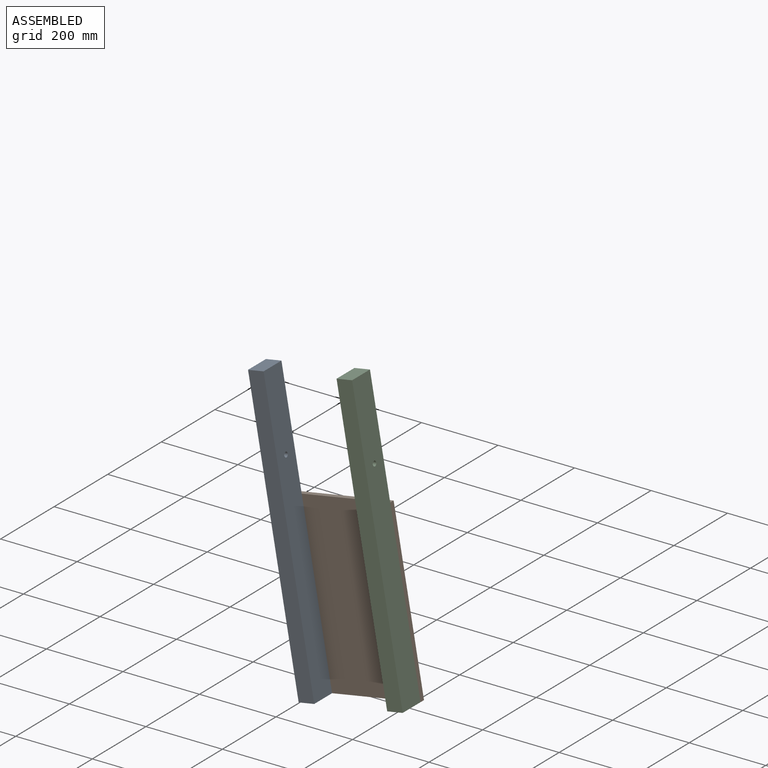
[diagram: assembled view]
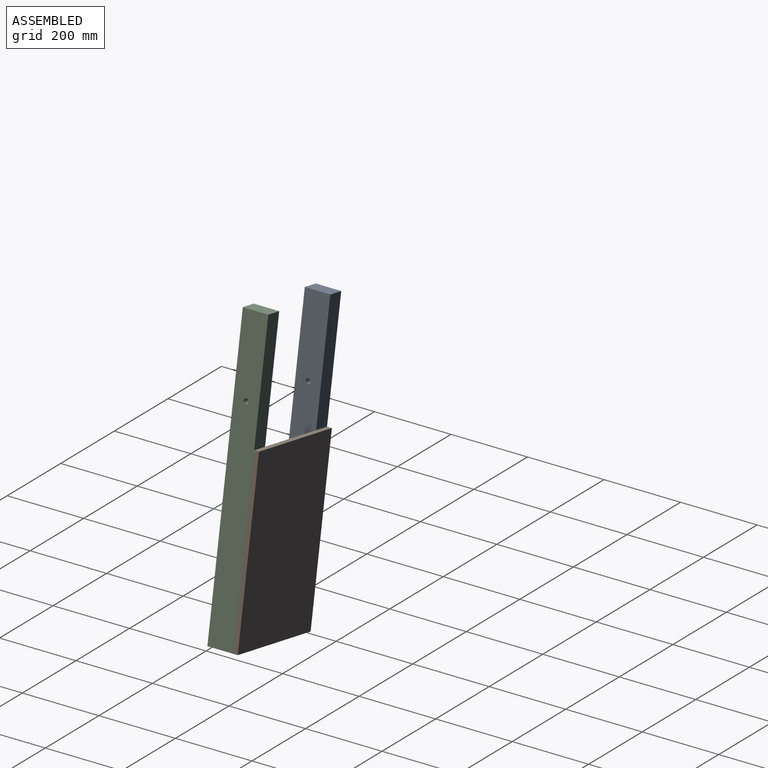
[diagram: assembled view, second angle]
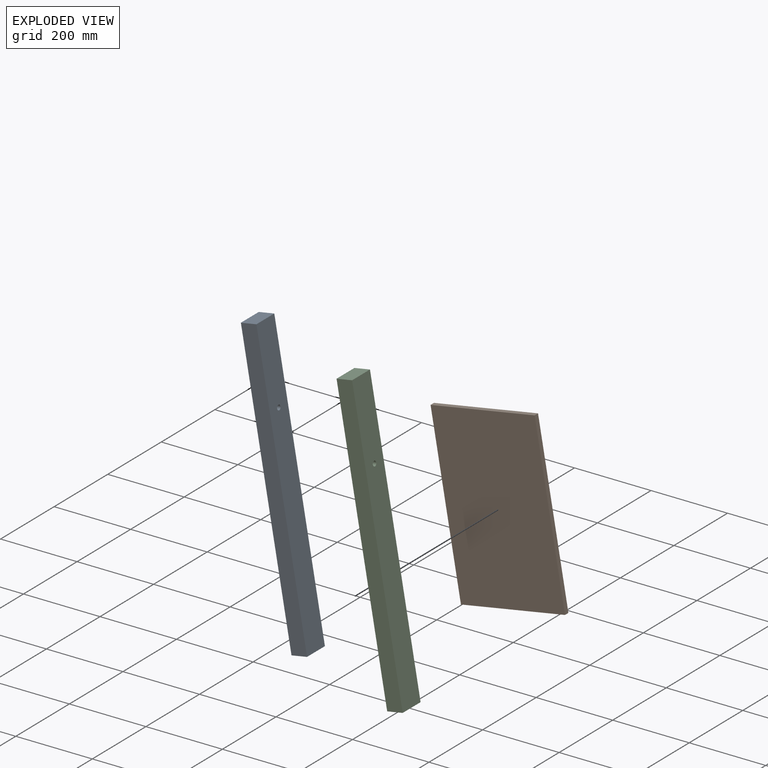
[diagram: exploded view]
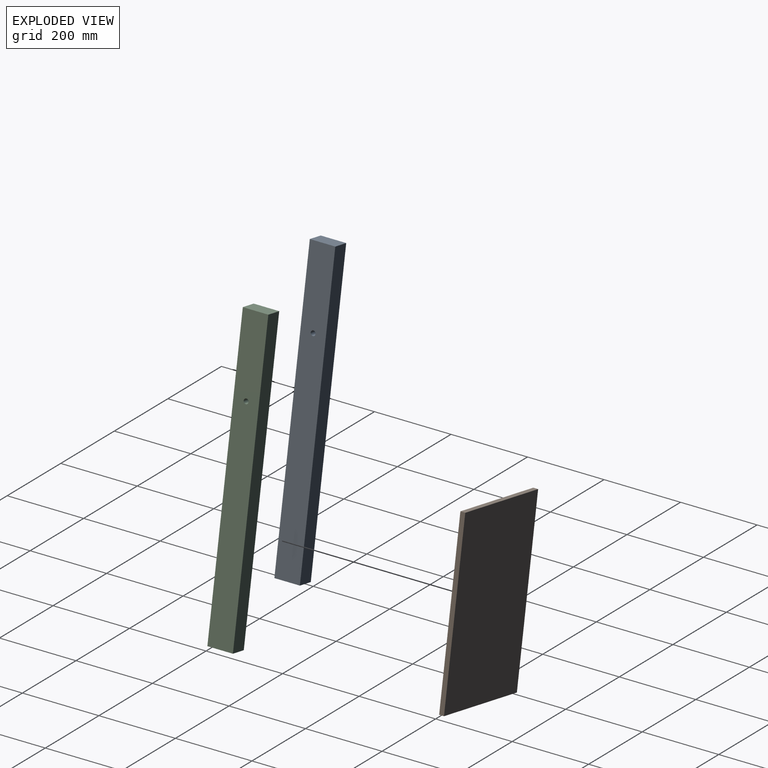
[diagram: exploded view, second angle]
ASSEMBLY  parts=3 mates=6
PART A: 7 faces, bbox 41.3x66.7x762 mm
  f0: plane 762x66.68mm, normal (-1,0,0), area 50679.7mm2, adj f1,f3,f4,f5,f6
  f1: plane 66.68x41.28mm, normal (0,0,-1), area 2752mm2, adj f0,f2,f4,f5
  f2: plane 762x66.68mm, normal (1,0,0), area 50679.7mm2, adj f1,f3,f4,f5,f6
  f3: plane 66.68x41.28mm, normal (0,0,1), area 2752mm2, adj f0,f2,f4,f5
  f4: plane 762x41.28mm, normal (0,1,0), area 31451.5mm2, adj f0,f1,f2,f3
  f5: plane 762x41.28mm, normal (0,-1,0), area 31451.5mm2, adj f0,f1,f2,f3
  f6: cylinder r=6.35mm len=41.28mm, axis (1,0,0), area 1646.8mm2, adj f0,f2
PART B: 6 faces, bbox 276.2x12.7x457.2 mm
  f0: plane 276.23x12.7mm, normal (0,0,-1), area 3508.1mm2, adj f1,f3,f4,f5
  f1: plane 457.2x12.7mm, normal (1,0,0), area 5806.4mm2, adj f0,f2,f4,f5
  f2: plane 276.23x12.7mm, normal (0,0,1), area 3508.1mm2, adj f1,f3,f4,f5
  f3: plane 457.2x12.7mm, normal (-1,0,0), area 5806.4mm2, adj f0,f2,f4,f5
  f4: plane 457.2x276.23mm, normal (0,1,0), area 126290.1mm2, adj f0,f1,f2,f3
  f5: plane 457.2x276.23mm, normal (0,-1,0), area 126290.1mm2, adj f0,f1,f2,f3
PART C: same geometry as A
PLACE A rot(axis=(0,-1,0),10deg) t=(614.44,64.13,-712.87)mm
PLACE B rot(axis=(0,1,0),170deg) t=(671.06,130.8,-238.64)mm
PLACE C rot(axis=(0,-1,0),10deg) t=(845.82,64.13,-672.07)mm
MATE planar A.f1 <-> B.f2  axis (0.17,0,-0.98) through (634.76,97.47,-709.29)mm
MATE planar C.f4 <-> B.f5  axis (0,1,0) through (799.98,130.8,-293.28)mm
MATE planar B.f2 <-> C.f1  axis (0.17,0,-0.98) through (750.45,137.15,-688.89)mm
MATE planar A.f4 <-> B.f5  axis (0,1,0) through (568.6,130.8,-334.08)mm
MATE planar C.f2 <-> B.f3  axis (0.98,0,0.17) through (820.39,97.47,-290.13)mm
MATE planar B.f1 <-> A.f0  axis (-0.98,0,-0.17) through (574.74,137.15,-487.75)mm
